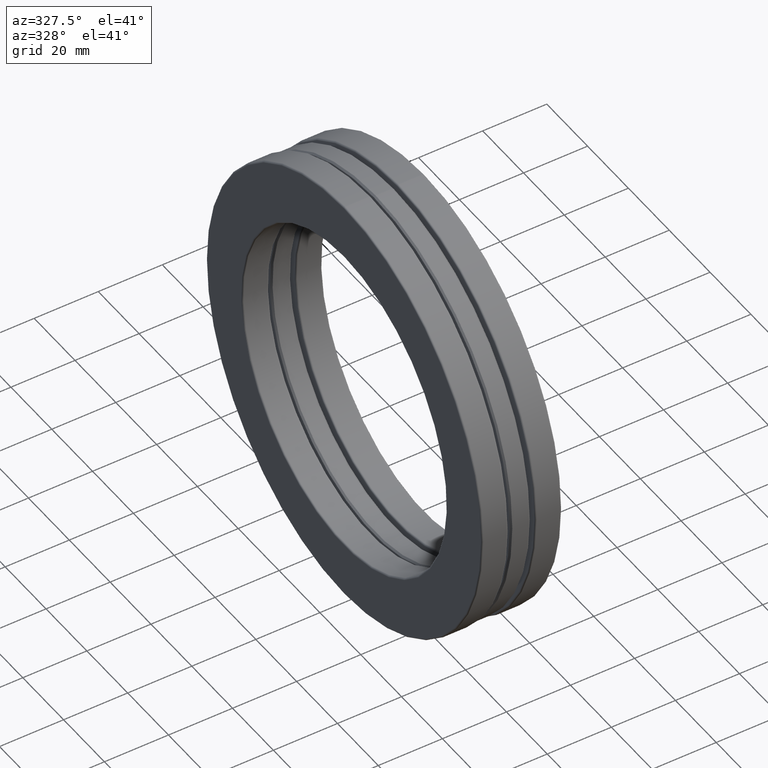
[diagram: clean part render]
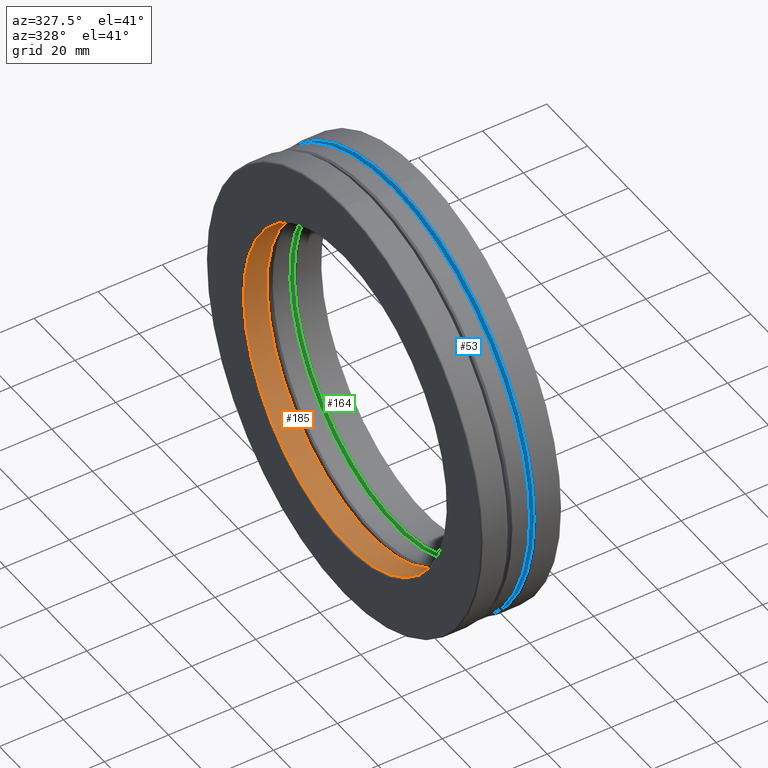
[diagram: same view with three faces highlighted in distinct colors, each labeled with its STEP entity id]
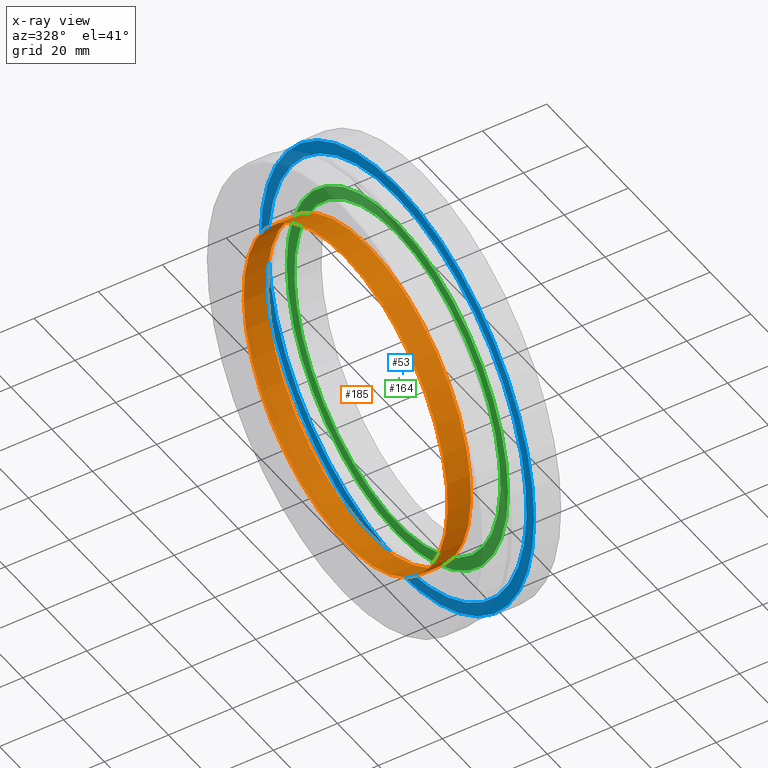
[diagram: x-ray of the same camera — body ghosted, the three highlighted faces saturated]
A machine part, auxiliary view with three faces highlighted in distinct colors.
The next image is the same camera in x-ray (body ghosted, the three faces saturated) — at least one of them is partly hidden behind the body in this view.
Their STEP definitions:

[orange] entity #185 — the highlighted cylindrical surface (bore or boss wall) has radius 49.9999 mm, axis along (-1, -0, -0).
#7 = EDGE_CURVE ( 'NONE', #583, #583, #131, .T. ) ;
#42 = FACE_OUTER_BOUND ( 'NONE', #226, .T. ) ;
#47 = AXIS2_PLACEMENT_3D ( 'NONE', #268, #142, #655 ) ;
#85 = ORIENTED_EDGE ( 'NONE', *, *, #7, .F. ) ;
#93 = AXIS2_PLACEMENT_3D ( 'NONE', #729, #409, #476 ) ;
#131 = CIRCLE ( 'NONE', #47, 1.968500000000000100 ) ;
#142 = DIRECTION ( 'NONE',  ( -1.000000000000000000, -0.0000000000000000000, -0.0000000000000000000 ) ) ;
#182 = ORIENTED_EDGE ( 'NONE', *, *, #343, .T. ) ;
#185 = ADVANCED_FACE ( 'NONE', ( #350, #42 ), #228, .F. ) ;
#226 = EDGE_LOOP ( 'NONE', ( #85 ) ) ;
#228 = CYLINDRICAL_SURFACE ( 'NONE', #408, 1.968500000000000100 ) ;
#254 = CARTESIAN_POINT ( 'NONE',  ( 0.0000000000000000000, 0.0000000000000000000, 0.0000000000000000000 ) ) ;
#268 = CARTESIAN_POINT ( 'NONE',  ( -0.1840032799999997400, 0.0000000000000000000, 0.0000000000000000000 ) ) ;
#324 = CARTESIAN_POINT ( 'NONE',  ( -0.1840032799999997400, 0.0000000000000000000, 1.968500000000000100 ) ) ;
#343 = EDGE_CURVE ( 'NONE', #569, #569, #401, .T. ) ;
#350 = FACE_OUTER_BOUND ( 'NONE', #787, .T. ) ;
#401 = CIRCLE ( 'NONE', #93, 1.968500000000000100 ) ;
#408 = AXIS2_PLACEMENT_3D ( 'NONE', #254, #576, #646 ) ;
#409 = DIRECTION ( 'NONE',  ( -1.000000000000000000, -0.0000000000000000000, -0.0000000000000000000 ) ) ;
#476 = DIRECTION ( 'NONE',  ( 0.0000000000000000000, 0.0000000000000000000, 1.000000000000000000 ) ) ;
#556 = CARTESIAN_POINT ( 'NONE',  ( -0.4719999999999999200, 0.0000000000000000000, 1.968500000000000100 ) ) ;
#569 = VERTEX_POINT ( 'NONE', #556 ) ;
#576 = DIRECTION ( 'NONE',  ( -1.000000000000000000, -0.0000000000000000000, -0.0000000000000000000 ) ) ;
#583 = VERTEX_POINT ( 'NONE', #324 ) ;
#646 = DIRECTION ( 'NONE',  ( 0.0000000000000000000, 0.0000000000000000000, 1.000000000000000000 ) ) ;
#655 = DIRECTION ( 'NONE',  ( 0.0000000000000000000, 0.0000000000000000000, 1.000000000000000000 ) ) ;
#729 = CARTESIAN_POINT ( 'NONE',  ( -0.4719999999999999200, 0.0000000000000000000, 0.0000000000000000000 ) ) ;
#787 = EDGE_LOOP ( 'NONE', ( #182 ) ) ;

[blue] entity #53 — the highlighted planar face has unit normal (1, 0, 0).
#45 = DIRECTION ( 'NONE',  ( -1.000000000000000000, -0.0000000000000000000, -0.0000000000000000000 ) ) ;
#53 = ADVANCED_FACE ( 'NONE', ( #174, #386 ), #785, .F. ) ;
#91 = DIRECTION ( 'NONE',  ( 0.0000000000000000000, 0.0000000000000000000, 1.000000000000000000 ) ) ;
#167 = VERTEX_POINT ( 'NONE', #732 ) ;
#169 = ORIENTED_EDGE ( 'NONE', *, *, #685, .F. ) ;
#174 = FACE_BOUND ( 'NONE', #488, .T. ) ;
#201 = AXIS2_PLACEMENT_3D ( 'NONE', #806, #45, #567 ) ;
#216 = DIRECTION ( 'NONE',  ( -1.000000000000000000, -0.0000000000000000000, -0.0000000000000000000 ) ) ;
#274 = DIRECTION ( 'NONE',  ( 0.0000000000000000000, 0.0000000000000000000, -1.000000000000000000 ) ) ;
#299 = EDGE_CURVE ( 'NONE', #389, #389, #620, .T. ) ;
#304 = AXIS2_PLACEMENT_3D ( 'NONE', #663, #216, #91 ) ;
#359 = DIRECTION ( 'NONE',  ( 1.000000000000000000, 0.0000000000000000000, 0.0000000000000000000 ) ) ;
#386 = FACE_OUTER_BOUND ( 'NONE', #779, .T. ) ;
#389 = VERTEX_POINT ( 'NONE', #429 ) ;
#429 = CARTESIAN_POINT ( 'NONE',  ( 0.1640032800000006700, 0.0000000000000000000, 2.637500000000000600 ) ) ;
#465 = CARTESIAN_POINT ( 'NONE',  ( 0.1640032800000006700, 2.588782924243225700E-017, 0.0000000000000000000 ) ) ;
#488 = EDGE_LOOP ( 'NONE', ( #169 ) ) ;
#567 = DIRECTION ( 'NONE',  ( 0.0000000000000000000, 0.0000000000000000000, 1.000000000000000000 ) ) ;
#619 = ORIENTED_EDGE ( 'NONE', *, *, #299, .T. ) ;
#620 = CIRCLE ( 'NONE', #304, 2.637500000000000600 ) ;
#663 = CARTESIAN_POINT ( 'NONE',  ( 0.1640032800000006700, 0.0000000000000000000, 0.0000000000000000000 ) ) ;
#685 = EDGE_CURVE ( 'NONE', #167, #167, #719, .T. ) ;
#719 = CIRCLE ( 'NONE', #201, 2.490952027662630500 ) ;
#732 = CARTESIAN_POINT ( 'NONE',  ( 0.1640032800000006700, 0.0000000000000000000, 2.490952027662630500 ) ) ;
#758 = AXIS2_PLACEMENT_3D ( 'NONE', #465, #359, #274 ) ;
#779 = EDGE_LOOP ( 'NONE', ( #619 ) ) ;
#785 = PLANE ( 'NONE',  #758 ) ;
#806 = CARTESIAN_POINT ( 'NONE',  ( 0.1640032800000006700, 0.0000000000000000000, 0.0000000000000000000 ) ) ;

[green] entity #164 — the highlighted planar face has unit normal (1, 0, 0).
#5 = CARTESIAN_POINT ( 'NONE',  ( 0.1640032800000006700, 2.588782924243225700E-017, 0.0000000000000000000 ) ) ;
#9 = VERTEX_POINT ( 'NONE', #427 ) ;
#25 = DIRECTION ( 'NONE',  ( 0.0000000000000000000, 0.0000000000000000000, 1.000000000000000000 ) ) ;
#37 = CARTESIAN_POINT ( 'NONE',  ( 0.1640032800000007200, 0.0000000000000000000, 2.135047972337369900 ) ) ;
#118 = DIRECTION ( 'NONE',  ( 0.0000000000000000000, 0.0000000000000000000, -1.000000000000000000 ) ) ;
#162 = AXIS2_PLACEMENT_3D ( 'NONE', #5, #313, #118 ) ;
#164 = ADVANCED_FACE ( 'NONE', ( #766, #250 ), #517, .F. ) ;
#231 = DIRECTION ( 'NONE',  ( -1.000000000000000000, -0.0000000000000000000, -0.0000000000000000000 ) ) ;
#233 = AXIS2_PLACEMENT_3D ( 'NONE', #428, #231, #676 ) ;
#250 = FACE_OUTER_BOUND ( 'NONE', #575, .T. ) ;
#275 = CARTESIAN_POINT ( 'NONE',  ( 0.1640032800000007200, 0.0000000000000000000, 0.0000000000000000000 ) ) ;
#313 = DIRECTION ( 'NONE',  ( 1.000000000000000000, 0.0000000000000000000, 0.0000000000000000000 ) ) ;
#427 = CARTESIAN_POINT ( 'NONE',  ( 0.1640032800000007800, 0.0000000000000000000, 1.988499999999999900 ) ) ;
#428 = CARTESIAN_POINT ( 'NONE',  ( 0.1640032800000007800, 0.0000000000000000000, 0.0000000000000000000 ) ) ;
#517 = PLANE ( 'NONE',  #162 ) ;
#518 = AXIS2_PLACEMENT_3D ( 'NONE', #275, #537, #25 ) ;
#537 = DIRECTION ( 'NONE',  ( -1.000000000000000000, -0.0000000000000000000, -0.0000000000000000000 ) ) ;
#560 = CIRCLE ( 'NONE', #518, 2.135047972337369900 ) ;
#575 = EDGE_LOOP ( 'NONE', ( #794 ) ) ;
#622 = EDGE_CURVE ( 'NONE', #700, #700, #560, .T. ) ;
#672 = EDGE_CURVE ( 'NONE', #9, #9, #788, .T. ) ;
#676 = DIRECTION ( 'NONE',  ( 0.0000000000000000000, 0.0000000000000000000, 1.000000000000000000 ) ) ;
#690 = ORIENTED_EDGE ( 'NONE', *, *, #672, .F. ) ;
#700 = VERTEX_POINT ( 'NONE', #37 ) ;
#730 = EDGE_LOOP ( 'NONE', ( #690 ) ) ;
#766 = FACE_BOUND ( 'NONE', #730, .T. ) ;
#788 = CIRCLE ( 'NONE', #233, 1.988499999999999900 ) ;
#794 = ORIENTED_EDGE ( 'NONE', *, *, #622, .T. ) ;